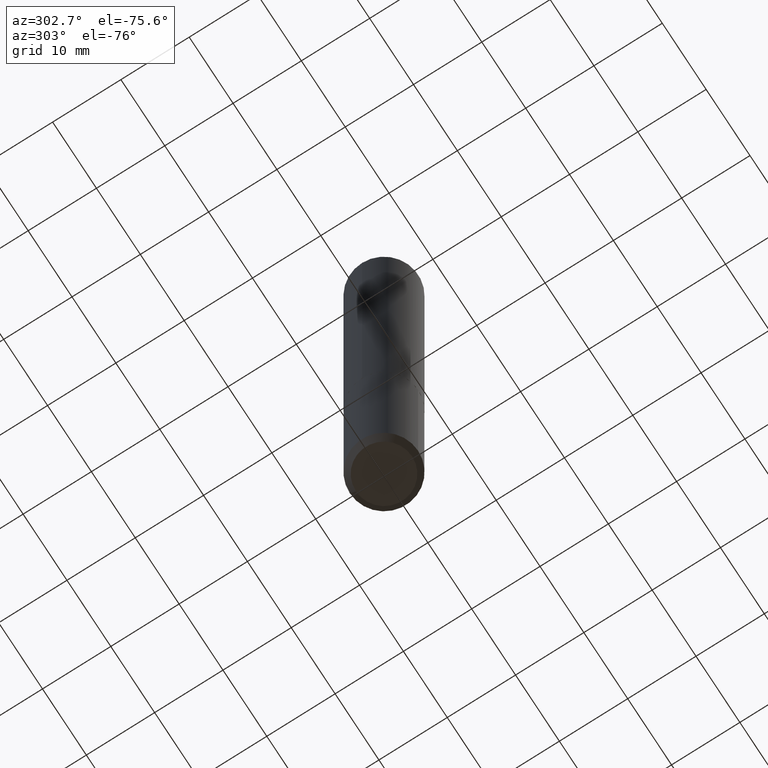
[diagram: clean part render]
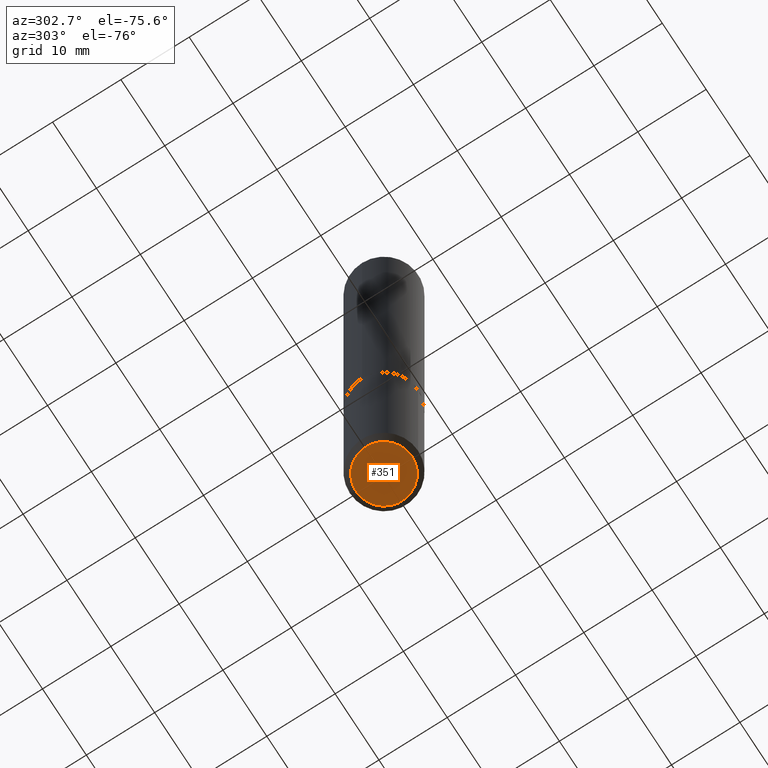
[diagram: same view with one face highlighted and labeled with its STEP entity id]
A machine part, auxiliary view. The second image highlights one B-rep face of the part: STEP entity #351.
In plain terms, the highlighted planar face has unit normal (-0, 0, 1).
Its self-contained STEP definition (entity closure, byte-faithful):
#12 = CARTESIAN_POINT ( 'NONE',  ( 8.575801720781588931E-29, -1.222360010435347805E-14, -3.503899999999999793 ) ) ;
#17 = VERTEX_POINT ( 'NONE', #91 ) ;
#70 = AXIS2_PLACEMENT_3D ( 'NONE', #313, #248, #192 ) ;
#91 = CARTESIAN_POINT ( 'NONE',  ( 1.274358396585824356E-15, 0.1618499999999877814, -3.503900000000000237 ) ) ;
#107 = CIRCLE ( 'NONE', #391, 0.1618500000000000216 ) ;
#108 = DIRECTION ( 'NONE',  ( -2.451305406586193258E-29, 3.483122994870168029E-15, 1.000000000000000000 ) ) ;
#115 = CARTESIAN_POINT ( 'NONE',  ( -1.130192509383436643E-15, -0.1618500000000122341, -3.503899999999999348 ) ) ;
#121 = PLANE ( 'NONE',  #70 ) ;
#152 = DIRECTION ( 'NONE',  ( -6.982962677686265922E-15, -1.000000000000000000, 3.375777563996617685E-15 ) ) ;
#189 = DIRECTION ( 'NONE',  ( -2.451305406586193258E-29, 3.483122994870168029E-15, 1.000000000000000000 ) ) ;
#192 = DIRECTION ( 'NONE',  ( -6.982962677686265922E-15, -1.000000000000000000, 3.483122994870167634E-15 ) ) ;
#222 = FACE_OUTER_BOUND ( 'NONE', #403, .T. ) ;
#238 = DIRECTION ( 'NONE',  ( -6.982962677686265922E-15, -1.000000000000000000, 3.375777563996617685E-15 ) ) ;
#248 = DIRECTION ( 'NONE',  ( -2.451305406586193258E-29, 3.483122994870167634E-15, 1.000000000000000000 ) ) ;
#263 = AXIS2_PLACEMENT_3D ( 'NONE', #285, #189, #152 ) ;
#264 = EDGE_CURVE ( 'NONE', #17, #336, #107, .T. ) ;
#277 = ORIENTED_EDGE ( 'NONE', *, *, #264, .F. ) ;
#285 = CARTESIAN_POINT ( 'NONE',  ( 8.575801720781588931E-29, -1.222360010435347805E-14, -3.503899999999999793 ) ) ;
#303 = CIRCLE ( 'NONE', #263, 0.1618500000000000216 ) ;
#313 = CARTESIAN_POINT ( 'NONE',  ( 8.568678149992099474E-29, -1.223380146317249786E-14, -3.503899999999999793 ) ) ;
#336 = VERTEX_POINT ( 'NONE', #115 ) ;
#342 = ORIENTED_EDGE ( 'NONE', *, *, #362, .F. ) ;
#351 = ADVANCED_FACE ( 'NONE', ( #222 ), #121, .F. ) ;
#362 = EDGE_CURVE ( 'NONE', #336, #17, #303, .T. ) ;
#391 = AXIS2_PLACEMENT_3D ( 'NONE', #12, #108, #238 ) ;
#403 = EDGE_LOOP ( 'NONE', ( #342, #277 ) ) ;